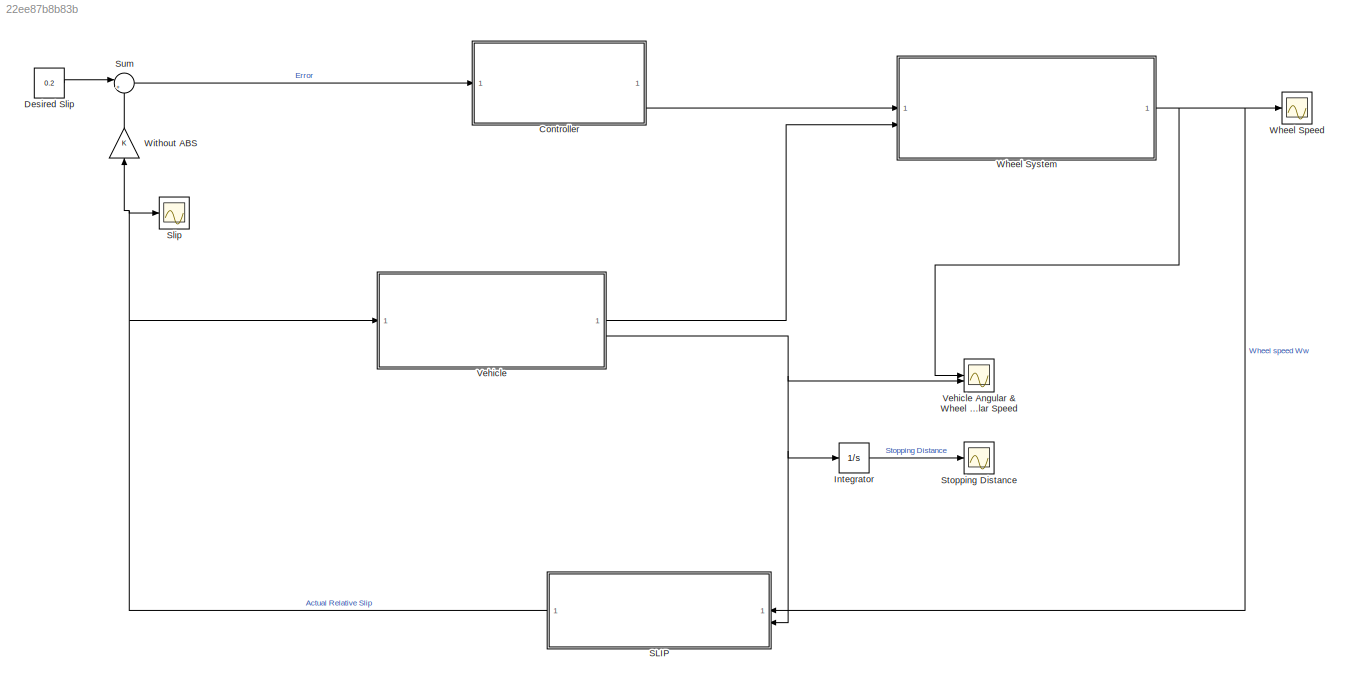
MODEL slx_22ee87b8b83b
KIND model
CONFIG AbsTol = auto
CONFIG EnableMultiTasking = off
CONFIG FixedStep = auto
CONFIG MaxStep = auto
CONFIG MinStep = auto
CONFIG RelTol = 1e-3
CONFIG SampleTimeConstraint = Unconstrained
CONFIG SolverName = VariableStepAuto
CONFIG StartTime = 0.0
CONFIG StopTime = 25
WORKSPACE source: mxarray member
WORKSPACE I = 5
WORKSPACE Jw = 0.02
WORKSPACE R = 0.28
WORKSPACE g = 9.81
WORKSPACE m = 75
WORKSPACE rw = 1.25
WORKSPACE v0 = 44
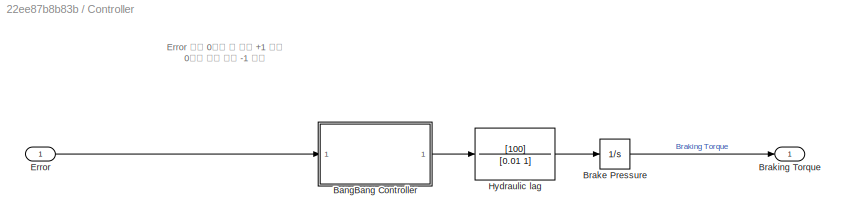
BLOCK [SubSystem] Controller
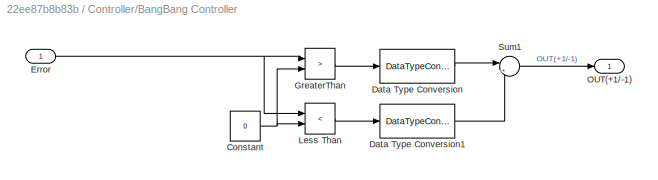
BLOCK [SubSystem] Controller/BangBang Controller
BLOCK [Constant] Controller/BangBang Controller/Constant
  Value = 0
BLOCK [DataTypeConversion] Controller/BangBang Controller/Data Type Conversion
  OutDataTypeStr = double
  SaturateOnIntegerOverflow = off
BLOCK [DataTypeConversion] Controller/BangBang Controller/Data Type Conversion1
  OutDataTypeStr = double
  SaturateOnIntegerOverflow = off
BLOCK [Inport] Controller/BangBang Controller/Error
BLOCK [RelationalOperator] Controller/BangBang Controller/GreaterThan
  InputSameDT = off
  Operator = >
  OutDataTypeStr = boolean
  RndMeth = Simplest
BLOCK [RelationalOperator] Controller/BangBang Controller/Less Than
  InputSameDT = off
  Operator = <
  OutDataTypeStr = boolean
  RndMeth = Simplest
BLOCK [Outport] Controller/BangBang Controller/OUT(+1//-1)
BLOCK [Sum] Controller/BangBang Controller/Sum1
  Inputs = |+-
BLOCK [Integrator] Controller/Brake Pressure
  LimitOutput = on
  LowerSaturationLimit = 0
  UpperSaturationLimit = 1000
BLOCK [Outport] Controller/Braking Torque
BLOCK [Inport] Controller/Error
BLOCK [TransferFcn] Controller/Hydraulic lag
  Denominator = [0.01 1]
  Numerator = [100]
BLOCK [Constant] Desired Slip
  Value = 0.2
BLOCK [Integrator] Integrator
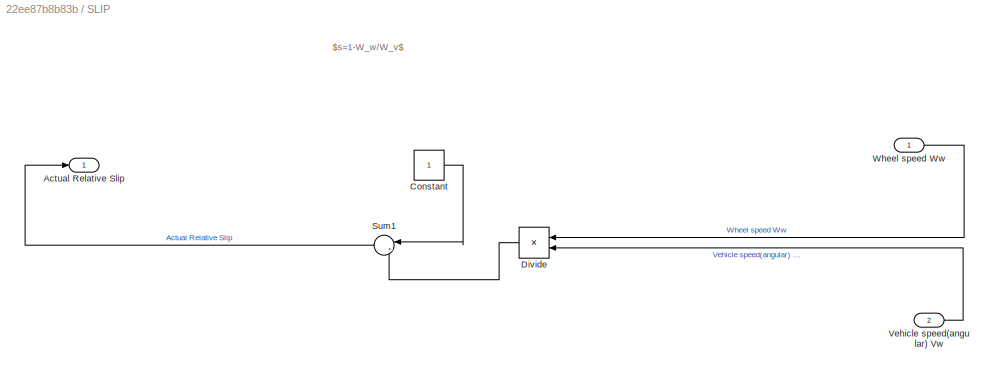
BLOCK [SubSystem] SLIP
BLOCK [Outport] SLIP/Actual Relative Slip
BLOCK [Constant] SLIP/Constant
BLOCK [Product] SLIP/Divide
  Inputs = */
BLOCK [Sum] SLIP/Sum1
  Inputs = |+-
  NameLocation = top
BLOCK [Inport] SLIP/Vehicle speed(angular) Vw
  Port = 2
BLOCK [Inport] SLIP/Wheel speed Ww
BLOCK [Scope] Slip
  Floating = off
  NumInputPorts = 1
  ScopeSpecificationString = Simulink.scopes.TimeScopeBlockCfg('CurrentConfiguration', extmgr.ConfigurationSet(extmgr.Configuration('Core','General UI',true),extmgr.Configuration('Core','Source UI',true),extmgr.Configuration('Sources','WiredSimulink',true,'DataLoggingVariableName','ScopeData1'),extmgr.Configuration('Visuals','Time Domain',true,'SerializedDisplays',{struct('MinYLimReal','-0.125','MaxYLimReal','1.125','YLabelRe...<+1365ch>
BLOCK [Scope] Stopping Distance
  Floating = off
  NumInputPorts = 1
  ScopeSpecificationString = Simulink.scopes.TimeScopeBlockCfg('CurrentConfiguration', extmgr.ConfigurationSet(extmgr.Configuration('Core','General UI',true),extmgr.Configuration('Core','Source UI',true),extmgr.Configuration('Sources','WiredSimulink',true,'DataLoggingVariableName','ScopeData2'),extmgr.Configuration('Visuals','Time Domain',true,'SerializedDisplays',{struct('MinYLimReal','-51.11819','MaxYLimReal','460.06368','Y...<+1384ch>
BLOCK [Sum] Sum
  Inputs = |+-
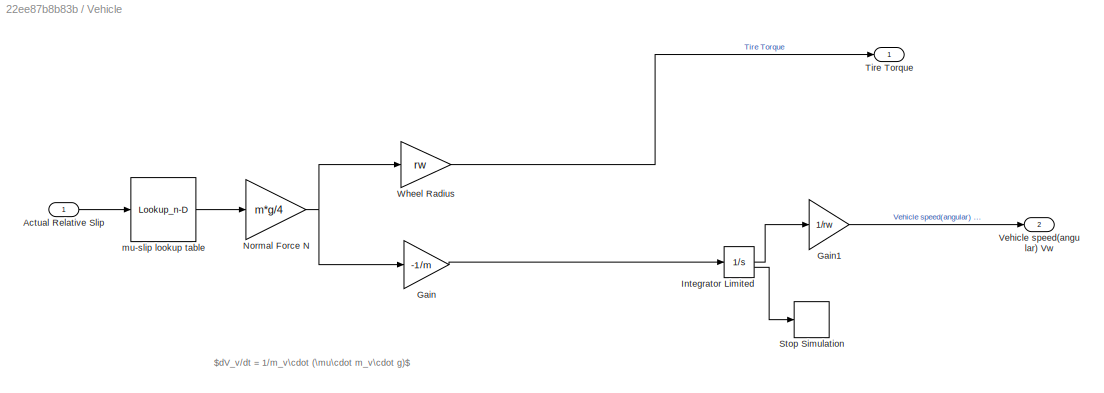
BLOCK [SubSystem] Vehicle
BLOCK [Scope] Vehicle Angular & Wheel Angular Speed
  Floating = off
  NumInputPorts = 2
  ScopeSpecificationString = Simulink.scopes.TimeScopeBlockCfg('CurrentConfiguration', extmgr.ConfigurationSet(extmgr.Configuration('Core','General UI',true),extmgr.Configuration('Core','Source UI',true),extmgr.Configuration('Sources','WiredSimulink',true,'DataLoggingVariableName','ScopeData3'),extmgr.Configuration('Visuals','Time Domain',true,'SerializedDisplays',{struct('MinYLimReal','-4.4','MaxYLimReal','39.6','YLabelReal'...<+1387ch>
BLOCK [Inport] Vehicle/Actual Relative Slip
BLOCK [Gain] Vehicle/Gain
  Gain = -1/m
BLOCK [Gain] Vehicle/Gain1
  Gain = 1/rw
BLOCK [Integrator] Vehicle/Integrator Limited
  InitialCondition = v0
  LimitOutput = on
  LowerSaturationLimit = 0
  ShowSaturationPort = on
  UpperSaturationLimit = 1000
BLOCK [Gain] Vehicle/Normal Force N
  Gain = m*g/4
BLOCK [Stop] Vehicle/Stop Simulation
BLOCK [Outport] Vehicle/Tire Torque
BLOCK [Outport] Vehicle/Vehicle speed(angular) Vw
  Port = 2
BLOCK [Gain] Vehicle/Wheel Radius
  Gain = rw
BLOCK [Lookup_n-D] Vehicle/mu-slip lookup table
  BreakpointsForDimension1 = [0,0.05,0.1,0.15,0.2,0.25,0.3,0.35,0.4,0.45,0.5,0.55,0.60,0.65,0.70,0.75,0.80,0.85,0.90,0.95,1]
  InputPortMap = u0
  InternalRulePriority = Speed
  NumberOfTableDimensions = 1
  RndMeth = Simplest
  Table = [0,0.4,0.8,0.97,1,0.98,0.96,0.94,0.92,0.9,0.88,0.855,0.83,0.81,0.79,0.77,0.75,0.73,0.72,0.71,0.7]
BLOCK [Scope] Wheel Speed
  Floating = off
  NumInputPorts = 1
  ScopeSpecificationString = Simulink.scopes.TimeScopeBlockCfg('CurrentConfiguration', extmgr.ConfigurationSet(extmgr.Configuration('Core','General UI',true),extmgr.Configuration('Core','Source UI',true),extmgr.Configuration('Sources','WiredSimulink',true),extmgr.Configuration('Visuals','Time Domain',true,'SerializedDisplays',{struct('MinYLimReal','-4.4','MaxYLimReal','39.6','YLabelReal','','MinYLimMag','0.00000','MaxYLimMag'...<+1340ch>
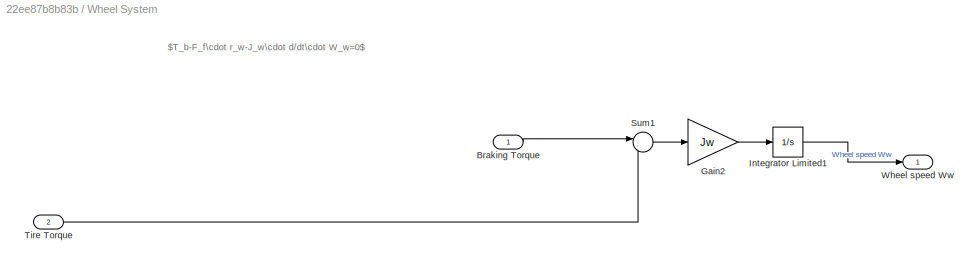
BLOCK [SubSystem] Wheel System
BLOCK [Inport] Wheel System/Braking Torque
BLOCK [Gain] Wheel System/Gain2
  Gain = Jw
BLOCK [Integrator] Wheel System/Integrator Limited1
  InitialCondition = v0/rw
  LimitOutput = on
  LowerSaturationLimit = 0
  UpperSaturationLimit = 1000
BLOCK [Sum] Wheel System/Sum1
  Inputs = |-+
BLOCK [Inport] Wheel System/Tire Torque
  Port = 2
BLOCK [Outport] Wheel System/Wheel speed Ww
BLOCK [Gain] Without ABS
  NameLocation = right
ANNOTATION Controller: Error 값이 0보다 클 경우 +1 출력 0보다 작을 경우 -1 출력
ANNOTATION SLIP: $s=1-W_w/W_v$
ANNOTATION Vehicle: $dV_v/dt = 1/m_v\cdot (\mu\cdot m_v\cdot g)$
ANNOTATION Wheel System: $T_b-F_f\cdot r_w-J_w\cdot d/dt\cdot W_w=0$
NET Controller/BangBang Controller/Constant:1 -> Controller/BangBang Controller/GreaterThan:2, Controller/BangBang Controller/Less Than:2
LINE Controller/BangBang Controller/Data Type Conversion1:1 -> Controller/BangBang Controller/Sum1:2
LINE Controller/BangBang Controller/Data Type Conversion:1 -> Controller/BangBang Controller/Sum1:1
NET Controller/BangBang Controller/Error:1 -> Controller/BangBang Controller/GreaterThan:1, Controller/BangBang Controller/Less Than:1
LINE Controller/BangBang Controller/GreaterThan:1 -> Controller/BangBang Controller/Data Type Conversion:1
LINE Controller/BangBang Controller/Less Than:1 -> Controller/BangBang Controller/Data Type Conversion1:1
LINE Controller/BangBang Controller/Sum1:1 -> Controller/BangBang Controller/OUT(+1//-1):1
LINE Controller/BangBang Controller:1 -> Controller/Hydraulic lag:1
LINE Controller/Brake Pressure:1 -> Controller/Braking Torque:1
LINE Controller/Error:1 -> Controller/BangBang Controller:1
LINE Controller/Hydraulic lag:1 -> Controller/Brake Pressure:1
LINE Controller:1 -> Wheel System:1
LINE Desired Slip:1 -> Sum:1
LINE Integrator:1 -> Stopping Distance:1
LINE SLIP/Constant:1 -> SLIP/Sum1:1
LINE SLIP/Divide:1 -> SLIP/Sum1:2
LINE SLIP/Sum1:1 -> SLIP/Actual Relative Slip:1
LINE SLIP/Vehicle speed(angular) Vw:1 -> SLIP/Divide:2
LINE SLIP/Wheel speed Ww:1 -> SLIP/Divide:1
NET SLIP:1 -> Slip:1, Vehicle:1, Without ABS:1
LINE Sum:1 -> Controller:1
LINE Vehicle/Actual Relative Slip:1 -> Vehicle/mu-slip lookup table:1
LINE Vehicle/Gain1:1 -> Vehicle/Vehicle speed(angular) Vw:1
LINE Vehicle/Gain:1 -> Vehicle/Integrator Limited:1
LINE Vehicle/Integrator Limited:1 -> Vehicle/Gain1:1
LINE Vehicle/Integrator Limited:2 -> Vehicle/Stop Simulation:1
NET Vehicle/Normal Force N:1 -> Vehicle/Gain:1, Vehicle/Wheel Radius:1
LINE Vehicle/Wheel Radius:1 -> Vehicle/Tire Torque:1
LINE Vehicle/mu-slip lookup table:1 -> Vehicle/Normal Force N:1
LINE Vehicle:1 -> Wheel System:2
NET Vehicle:2 -> Integrator:1, SLIP:2, Vehicle Angular & Wheel Angular Speed:2
LINE Wheel System/Braking Torque:1 -> Wheel System/Sum1:1
LINE Wheel System/Gain2:1 -> Wheel System/Integrator Limited1:1
LINE Wheel System/Integrator Limited1:1 -> Wheel System/Wheel speed Ww:1
LINE Wheel System/Sum1:1 -> Wheel System/Gain2:1
LINE Wheel System/Tire Torque:1 -> Wheel System/Sum1:2
NET Wheel System:1 -> SLIP:1, Vehicle Angular & Wheel Angular Speed:1, Wheel Speed:1
LINE Without ABS:1 -> Sum:2
note: NET lines group one-source signal fan-out (src -> all destinations, sorted); 1:1 wires keep LINE
